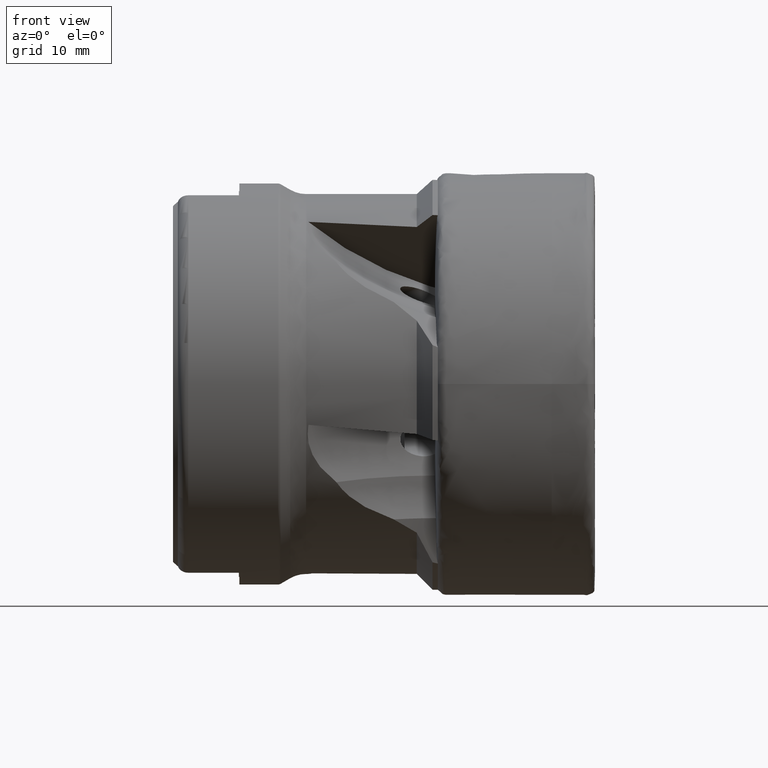
[diagram: clean part render]
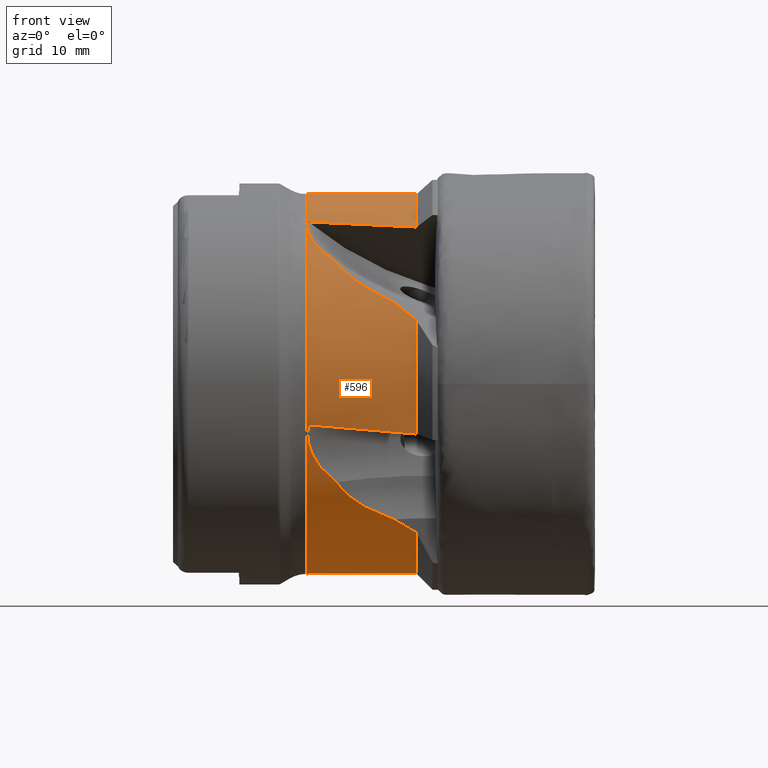
[diagram: same view with one face highlighted and labeled with its STEP entity id]
A machine part, front view. The second image highlights one B-rep face of the part: STEP entity #596.
In plain terms, the highlighted cylindrical surface (partial cylindrical patch) has radius 18 mm, axis along (1, -0, -0).
Its self-contained STEP definition (entity closure, byte-faithful):
#134 = VERTEX_POINT ( 'NONE', #5346 ) ;
#136 = VERTEX_POINT ( 'NONE', #5367 ) ;
#143 = VERTEX_POINT ( 'NONE', #5355 ) ;
#165 = VERTEX_POINT ( 'NONE', #5868 ) ;
#169 = VERTEX_POINT ( 'NONE', #5876 ) ;
#178 = VERTEX_POINT ( 'NONE', #5917 ) ;
#192 = VERTEX_POINT ( 'NONE', #5843 ) ;
#197 = VERTEX_POINT ( 'NONE', #5837 ) ;
#205 = VERTEX_POINT ( 'NONE', #5816 ) ;
#206 = VERTEX_POINT ( 'NONE', #5818 ) ;
#207 = VERTEX_POINT ( 'NONE', #5845 ) ;
#208 = VERTEX_POINT ( 'NONE', #5810 ) ;
#210 = VERTEX_POINT ( 'NONE', #5811 ) ;
#211 = VERTEX_POINT ( 'NONE', #5812 ) ;
#214 = VERTEX_POINT ( 'NONE', #5853 ) ;
#218 = VERTEX_POINT ( 'NONE', #5813 ) ;
#274 = ORIENTED_EDGE ( 'NONE', *, *, #5990, .F. ) ;
#275 = ORIENTED_EDGE ( 'NONE', *, *, #6005, .F. ) ;
#276 = ORIENTED_EDGE ( 'NONE', *, *, #6013, .T. ) ;
#277 = ORIENTED_EDGE ( 'NONE', *, *, #6015, .T. ) ;
#278 = ORIENTED_EDGE ( 'NONE', *, *, #6007, .T. ) ;
#279 = ORIENTED_EDGE ( 'NONE', *, *, #5762, .F. ) ;
#280 = ORIENTED_EDGE ( 'NONE', *, *, #6003, .F. ) ;
#281 = ORIENTED_EDGE ( 'NONE', *, *, #6039, .T. ) ;
#282 = ORIENTED_EDGE ( 'NONE', *, *, #6034, .T. ) ;
#283 = ORIENTED_EDGE ( 'NONE', *, *, #6052, .T. ) ;
#284 = ORIENTED_EDGE ( 'NONE', *, *, #6019, .F. ) ;
#285 = ORIENTED_EDGE ( 'NONE', *, *, #6001, .F. ) ;
#375 = ORIENTED_EDGE ( 'NONE', *, *, #5587, .T. ) ;
#376 = ORIENTED_EDGE ( 'NONE', *, *, #6006, .T. ) ;
#596 = ADVANCED_FACE ( 'NONE', ( #1415 ), #1418, .T. ) ;
#734 = AXIS2_PLACEMENT_3D ( 'NONE', #6546, #6564, #6541 ) ;
#950 = AXIS2_PLACEMENT_3D ( 'NONE', #4468, #4469, #4470 ) ;
#952 = AXIS2_PLACEMENT_3D ( 'NONE', #4475, #4476, #4477 ) ;
#953 = AXIS2_PLACEMENT_3D ( 'NONE', #4502, #4503, #4504 ) ;
#989 = AXIS2_PLACEMENT_3D ( 'NONE', #5124, #5125, #5126 ) ;
#1415 = FACE_OUTER_BOUND ( 'NONE', #6071, .T. ) ;
#1418 = CYLINDRICAL_SURFACE ( 'NONE', #734, 18.00000000000000400 ) ;
#1837 = LINE ( 'NONE', #3836, #1847 ) ;
#1847 = VECTOR ( 'NONE', #3839, 1000.000000000000000 ) ;
#1885 = LINE ( 'NONE', #4116, #1890 ) ;
#1890 = VECTOR ( 'NONE', #4118, 1000.000000000000000 ) ;
#2019 = CIRCLE ( 'NONE', #952, 18.00000000000000400 ) ;
#2021 = CIRCLE ( 'NONE', #950, 18.00000000000000400 ) ;
#2024 = CIRCLE ( 'NONE', #953, 18.00000000000000400 ) ;
#2090 = CIRCLE ( 'NONE', #989, 18.00000000000000700 ) ;
#3836 = CARTESIAN_POINT ( 'NONE',  ( 0.0000000000000000000, 2.204364238465235800E-015, 18.00000000000000400 ) ) ;
#3839 = DIRECTION ( 'NONE',  ( 1.000000000000000000, -0.0000000000000000000, -0.0000000000000000000 ) ) ;
#3968 =( BOUNDED_CURVE ( )  B_SPLINE_CURVE ( 3, ( #4230, #4229, #4236, #4237 ),
 .UNSPECIFIED., .F., .F. ) 
 B_SPLINE_CURVE_WITH_KNOTS ( ( 4, 4 ),
 ( 1.600942919274262100, 1.650925920689469800 ),
 .UNSPECIFIED. ) 
 CURVE ( )  GEOMETRIC_REPRESENTATION_ITEM ( )  RATIONAL_B_SPLINE_CURVE ( ( 1.000000000000000000, 0.9997918191331811600, 0.9997918191331811600, 1.000000000000000000 ) ) 
 REPRESENTATION_ITEM ( '' )  );
#3990 =( BOUNDED_CURVE ( )  B_SPLINE_CURVE ( 3, ( #4428, #4429, #4433, #4434 ),
 .UNSPECIFIED., .F., .F. ) 
 B_SPLINE_CURVE_WITH_KNOTS ( ( 4, 4 ),
 ( 1.600942919274262100, 1.650925920689467100 ),
 .UNSPECIFIED. ) 
 CURVE ( )  GEOMETRIC_REPRESENTATION_ITEM ( )  RATIONAL_B_SPLINE_CURVE ( ( 1.000000000000000000, 0.9997918191331811600, 0.9997918191331811600, 1.000000000000000000 ) ) 
 REPRESENTATION_ITEM ( '' )  );
#3995 = B_SPLINE_CURVE_WITH_KNOTS ( 'NONE', 3,
 ( #4501, #4500, #4506, #4507 ),
 .UNSPECIFIED., .F., .F.,
 ( 4, 4 ),
 ( 0.008043967339385059100, 0.009488676357650473200 ),
 .UNSPECIFIED. ) ;
#3996 = B_SPLINE_CURVE_WITH_KNOTS ( 'NONE', 3,
 ( #4464, #4505, #4509, #4510, #4511, #4512, #4513, #4514, #4515, #4516, #4517, #4518, #4519, #4520, #4521, #4522 ),
 .UNSPECIFIED., .F., .F.,
 ( 4, 2, 2, 2, 2, 2, 2, 4 ),
 ( 0.001676247638824960900, 0.002517159021820257600, 0.003358070404815552500, 0.005039893170806131500, 0.005880804553801423000, 0.006721715936796712800, 0.007562627319792004200, 0.008403538702787294000 ),
 .UNSPECIFIED. ) ;
#4000 = B_SPLINE_CURVE_WITH_KNOTS ( 'NONE', 3,
 ( #4564, #4563, #4570, #4571 ),
 .UNSPECIFIED., .F., .F.,
 ( 4, 4 ),
 ( 4.210056296469060200E-017, 0.002885907314653152100 ),
 .UNSPECIFIED. ) ;
#4001 = B_SPLINE_CURVE_WITH_KNOTS ( 'NONE', 3,
 ( #4572, #4573, #4578, #4579, #4580, #4581, #4582, #4583, #4584, #4585, #4586, #4587 ),
 .UNSPECIFIED., .F., .F.,
 ( 4, 2, 2, 2, 2, 4 ),
 ( 0.002339962240303283900, 0.004112411671007567100, 0.005884861101711848900, 0.007657310532416132500, 0.008543535247768272600, 0.009429759963120414400 ),
 .UNSPECIFIED. ) ;
#4003 =( BOUNDED_CURVE ( )  B_SPLINE_CURVE ( 3, ( #4602, #4603, #4608, #4609 ),
 .UNSPECIFIED., .F., .F. ) 
 B_SPLINE_CURVE_WITH_KNOTS ( ( 4, 4 ),
 ( 1.600942919274262100, 1.650925920689467100 ),
 .UNSPECIFIED. ) 
 CURVE ( )  GEOMETRIC_REPRESENTATION_ITEM ( )  RATIONAL_B_SPLINE_CURVE ( ( 1.000000000000000000, 0.9997918191331811600, 0.9997918191331811600, 1.000000000000000000 ) ) 
 REPRESENTATION_ITEM ( '' )  );
#4012 = B_SPLINE_CURVE_WITH_KNOTS ( 'NONE', 3,
 ( #4676, #4684, #4696, #4697, #4698, #4699, #4700, #4701, #4702, #4703, #4704, #4705 ),
 .UNSPECIFIED., .F., .F.,
 ( 4, 2, 2, 2, 2, 4 ),
 ( 0.002339962240303959100, 0.004111825574473437100, 0.005883688908642914100, 0.007655552242812392100, 0.008541483909897127100, 0.009427415576981861300 ),
 .UNSPECIFIED. ) ;
#4016 = B_SPLINE_CURVE_WITH_KNOTS ( 'NONE', 3,
 ( #4734, #4733, #4739, #4740 ),
 .UNSPECIFIED., .F., .F.,
 ( 4, 4 ),
 ( 6.014889436379361800E-017, 0.002885907314653583600 ),
 .UNSPECIFIED. ) ;
#4024 = B_SPLINE_CURVE_WITH_KNOTS ( 'NONE', 3,
 ( #4801, #4809, #4830, #4831, #4832, #4833, #4834, #4835, #4836, #4837, #4838, #4839, #4840, #4841 ),
 .UNSPECIFIED., .F., .F.,
 ( 4, 2, 2, 2, 2, 2, 4 ),
 ( 0.008498968940308843800, 0.01017260691994831300, 0.01184624489958778200, 0.01268306388940751800, 0.01351988287922725400, 0.01435670186904698800, 0.01519352085886672500 ),
 .UNSPECIFIED. ) ;
#4116 = CARTESIAN_POINT ( 'NONE',  ( 0.0000000000000000000, 0.0000000000000000000, -18.00000000000000400 ) ) ;
#4118 = DIRECTION ( 'NONE',  ( 1.000000000000000000, -0.0000000000000000000, -0.0000000000000000000 ) ) ;
#4229 = CARTESIAN_POINT ( 'NONE',  ( -19.42664910740196400, -17.44329793379818800, -4.452113513408334300 ) ) ;
#4230 = CARTESIAN_POINT ( 'NONE',  ( -15.99999999999998200, -17.36429240675654700, -4.741450117069346600 ) ) ;
#4236 = CARTESIAN_POINT ( 'NONE',  ( -22.84964599021049700, -17.51504858643505000, -4.160893000107154000 ) ) ;
#4237 = CARTESIAN_POINT ( 'NONE',  ( -26.26685284105098000, -17.57949955332797400, -3.867970456782499100 ) ) ;
#4428 = CARTESIAN_POINT ( 'NONE',  ( -15.99999999999998200, -0.5425564751527683900, -17.99182126609949300 ) ) ;
#4429 = CARTESIAN_POINT ( 'NONE',  ( -19.42664910740178300, -0.8423494259316528500, -17.98278079130572500 ) ) ;
#4433 = CARTESIAN_POINT ( 'NONE',  ( -22.84964599021013500, -1.141822848461959500, -17.96625164374170700 ) ) ;
#4434 = CARTESIAN_POINT ( 'NONE',  ( -26.26685284105032600, -1.440789708833602400, -17.94224414656424600 ) ) ;
#4464 = CARTESIAN_POINT ( 'NONE',  ( -23.60894969125574500, -15.40981562249034400, -9.302557846143821900 ) ) ;
#4468 = CARTESIAN_POINT ( 'NONE',  ( -15.99999999999998200, 0.0000000000000000000, 0.0000000000000000000 ) ) ;
#4469 = DIRECTION ( 'NONE',  ( 1.000000000000000000, -0.0000000000000000000, -0.0000000000000000000 ) ) ;
#4470 = DIRECTION ( 'NONE',  ( 0.0000000000000000000, 0.0000000000000000000, -1.000000000000000000 ) ) ;
#4475 = CARTESIAN_POINT ( 'NONE',  ( -15.99999999999998200, 0.0000000000000000000, 0.0000000000000000000 ) ) ;
#4476 = DIRECTION ( 'NONE',  ( 1.000000000000000000, -0.0000000000000000000, -0.0000000000000000000 ) ) ;
#4477 = DIRECTION ( 'NONE',  ( 0.0000000000000000000, 0.0000000000000000000, -1.000000000000000000 ) ) ;
#4500 = CARTESIAN_POINT ( 'NONE',  ( -26.36091894112928800, -0.4823173134096510600, -18.00000000000000400 ) ) ;
#4501 = CARTESIAN_POINT ( 'NONE',  ( -26.30237559643599700, -1.399686788546110700E-015, -18.00000000000000400 ) ) ;
#4502 = CARTESIAN_POINT ( 'NONE',  ( -15.99999999999998200, 0.0000000000000000000, 0.0000000000000000000 ) ) ;
#4503 = DIRECTION ( 'NONE',  ( 1.000000000000000000, -0.0000000000000000000, -0.0000000000000000000 ) ) ;
#4504 = DIRECTION ( 'NONE',  ( 0.0000000000000000000, 0.0000000000000000000, -1.000000000000000000 ) ) ;
#4505 = CARTESIAN_POINT ( 'NONE',  ( -23.82195952850091600, -15.50398142163749800, -9.146570898596561200 ) ) ;
#4506 = CARTESIAN_POINT ( 'NONE',  ( -26.34922387146879800, -0.9625793238788392700, -17.98064517353011000 ) ) ;
#4507 = CARTESIAN_POINT ( 'NONE',  ( -26.26685284105032600, -1.440789708833602400, -17.94224414656424600 ) ) ;
#4509 = CARTESIAN_POINT ( 'NONE',  ( -24.02847670828777300, -15.59975961131219600, -8.982597375298171400 ) ) ;
#4510 = CARTESIAN_POINT ( 'NONE',  ( -24.42642975061316700, -15.79442802139335500, -8.635716473719201100 ) ) ;
#4511 = CARTESIAN_POINT ( 'NONE',  ( -24.61874651658116200, -15.89381046009978200, -8.451852855052074200 ) ) ;
#4512 = CARTESIAN_POINT ( 'NONE',  ( -25.16118118892155300, -16.19232238974957000, -7.873805060231298100 ) ) ;
#4513 = CARTESIAN_POINT ( 'NONE',  ( -25.47712106966659800, -16.39136330381817100, -7.455054677033262000 ) ) ;
#4514 = CARTESIAN_POINT ( 'NONE',  ( -25.85908263114310700, -16.68530059770204900, -6.757544062982728600 ) ) ;
#4515 = CARTESIAN_POINT ( 'NONE',  ( -25.97038088615408200, -16.78235080934159400, -6.513344963961257500 ) ) ;
#4516 = CARTESIAN_POINT ( 'NONE',  ( -26.15034459715524700, -16.96774360185637300, -6.013870498192456900 ) ) ;
#4517 = CARTESIAN_POINT ( 'NONE',  ( -26.22008291239092200, -17.05684794251136400, -5.756860710532786000 ) ) ;
#4518 = CARTESIAN_POINT ( 'NONE',  ( -26.31474180860365300, -17.22672602568902200, -5.226606682186728700 ) ) ;
#4519 = CARTESIAN_POINT ( 'NONE',  ( -26.33905582822875500, -17.30748924587783200, -4.952745335896719500 ) ) ;
#4520 = CARTESIAN_POINT ( 'NONE',  ( -26.33861213922689600, -17.45357439795450500, -4.410398065196634600 ) ) ;
#4521 = CARTESIAN_POINT ( 'NONE',  ( -26.31453320748479600, -17.51982482162927800, -4.139185537394697100 ) ) ;
#4522 = CARTESIAN_POINT ( 'NONE',  ( -26.26685284105098000, -17.57949955332797400, -3.867970456782499100 ) ) ;
#4563 = CARTESIAN_POINT ( 'NONE',  ( -16.79625608365794800, -11.63182649021520700, -13.74790413223397500 ) ) ;
#4564 = CARTESIAN_POINT ( 'NONE',  ( -16.00000000000019500, -11.20001698358492000, -14.09111846403265000 ) ) ;
#4570 = CARTESIAN_POINT ( 'NONE',  ( -17.52238898240534200, -12.11023745004506200, -13.33640961978853700 ) ) ;
#4571 = CARTESIAN_POINT ( 'NONE',  ( -18.17194931938242800, -12.62315075929801000, -12.83183793959499400 ) ) ;
#4572 = CARTESIAN_POINT ( 'NONE',  ( -18.17194931938242800, -12.62315075929801000, -12.83183793959499400 ) ) ;
#4573 = CARTESIAN_POINT ( 'NONE',  ( -18.70525326304713700, -12.80632406175178800, -12.65164362738229200 ) ) ;
#4578 = CARTESIAN_POINT ( 'NONE',  ( -19.22639589112455400, -13.00112485977934000, -12.45246709949495300 ) ) ;
#4579 = CARTESIAN_POINT ( 'NONE',  ( -20.23887849094744600, -13.41588901779624300, -12.00446193487032600 ) ) ;
#4580 = CARTESIAN_POINT ( 'NONE',  ( -20.73033529528551000, -13.63579424027118100, -11.75586604467643400 ) ) ;
#4581 = CARTESIAN_POINT ( 'NONE',  ( -21.67385269645917500, -14.10462525784909200, -11.18904899261034700 ) ) ;
#4582 = CARTESIAN_POINT ( 'NONE',  ( -22.12772783852517500, -14.35507336868130700, -10.86857254152635300 ) ) ;
#4583 = CARTESIAN_POINT ( 'NONE',  ( -22.73834923163991200, -14.74087567395975500, -10.33223521279508400 ) ) ;
#4584 = CARTESIAN_POINT ( 'NONE',  ( -22.93118620233366300, -14.87165064630832100, -10.14356903441184200 ) ) ;
#4585 = CARTESIAN_POINT ( 'NONE',  ( -23.29128245992743700, -15.13767923961062300, -9.742107212527638900 ) ) ;
#4586 = CARTESIAN_POINT ( 'NONE',  ( -23.45942127125208300, -15.27374422507361200, -9.527961996310638800 ) ) ;
#4587 = CARTESIAN_POINT ( 'NONE',  ( -23.60894969125574500, -15.40981562249034400, -9.302557846143821900 ) ) ;
#4602 = CARTESIAN_POINT ( 'NONE',  ( -15.99999999999998200, -10.13638979328873700, 14.87459585866157000 ) ) ;
#4603 = CARTESIAN_POINT ( 'NONE',  ( -19.42664910740179400, -9.888538343557307500, 15.04349583612526300 ) ) ;
#4608 = CARTESIAN_POINT ( 'NONE',  ( -22.84964599021014900, -9.636543666195567700, 15.20614953606031600 ) ) ;
#4609 = CARTESIAN_POINT ( 'NONE',  ( -26.26685284105046500, -9.380563142614622800, 15.36245537430199600 ) ) ;
#4676 = CARTESIAN_POINT ( 'NONE',  ( -18.17194931938308500, -16.24243702710636900, 7.757785729219961900 ) ) ;
#4684 = CARTESIAN_POINT ( 'NONE',  ( -18.70507691522761800, -16.13173197070971200, 7.989568349914141400 ) ) ;
#4696 = CARTESIAN_POINT ( 'NONE',  ( -19.22605115239269200, -16.00687363508243900, 8.238513725541702500 ) ) ;
#4697 = CARTESIAN_POINT ( 'NONE',  ( -20.23821882578883800, -15.71843176847191300, 8.776332646118721200 ) ) ;
#4698 = CARTESIAN_POINT ( 'NONE',  ( -20.72952885387343300, -15.55504896289792100, 9.065075716252584600 ) ) ;
#4699 = CARTESIAN_POINT ( 'NONE',  ( -21.67278712584013400, -15.17195199992054300, 9.692627017050174500 ) ) ;
#4700 = CARTESIAN_POINT ( 'NONE',  ( -22.12647537022061800, -14.95076508702471700, 10.03343008670631800 ) ) ;
#4701 = CARTESIAN_POINT ( 'NONE',  ( -22.73883613935073500, -14.56818050047660600, 10.57435061380075300 ) ) ;
#4702 = CARTESIAN_POINT ( 'NONE',  ( -22.93249267738942300, -14.43178525899569600, 10.76021878618938600 ) ) ;
#4703 = CARTESIAN_POINT ( 'NONE',  ( -23.29454163830993400, -14.13685621510606400, 11.14486565382667000 ) ) ;
#4704 = CARTESIAN_POINT ( 'NONE',  ( -23.46113337960746000, -13.97957673839803400, 11.34192127763927800 ) ) ;
#4705 = CARTESIAN_POINT ( 'NONE',  ( -23.60894969125566700, -13.81268647685533300, 11.54165032792516000 ) ) ;
#4733 = CARTESIAN_POINT ( 'NONE',  ( -16.79625608365804400, -16.78585101597090200, 6.522228238661768700 ) ) ;
#4734 = CARTESIAN_POINT ( 'NONE',  ( -16.00000000000029500, -16.96978311794775300, 6.002204672435314400 ) ) ;
#4739 = CARTESIAN_POINT ( 'NONE',  ( -17.52238898240575100, -16.55253068396044100, 7.108544196937262200 ) ) ;
#4740 = CARTESIAN_POINT ( 'NONE',  ( -18.17194931938308500, -16.24243702710636900, 7.757785729219961900 ) ) ;
#4801 = CARTESIAN_POINT ( 'NONE',  ( -23.60894969125566700, -13.81268647685533300, 11.54165032792516000 ) ) ;
#4809 = CARTESIAN_POINT ( 'NONE',  ( -24.03662153221733500, -13.57811795816082800, 11.82237460166527000 ) ) ;
#4830 = CARTESIAN_POINT ( 'NONE',  ( -24.44176142058255900, -13.31258615342816600, 12.12269679194631800 ) ) ;
#4831 = CARTESIAN_POINT ( 'NONE',  ( -25.15834489841321900, -12.71881899431175000, 12.74426816226994700 ) ) ;
#4832 = CARTESIAN_POINT ( 'NONE',  ( -25.47338750579028500, -12.38980846057541300, 13.06703246189553800 ) ) ;
#4833 = CARTESIAN_POINT ( 'NONE',  ( -25.85639206574825600, -11.82609832741477600, 13.57229056249577300 ) ) ;
#4834 = CARTESIAN_POINT ( 'NONE',  ( -25.96823353062060800, -11.62650001091504300, 13.74393270394827700 ) ) ;
#4835 = CARTESIAN_POINT ( 'NONE',  ( -26.14905163308759800, -11.21403186813912700, 14.08249544416139700 ) ) ;
#4836 = CARTESIAN_POINT ( 'NONE',  ( -26.21919622453665600, -10.99963221335723400, 14.25082494861953600 ) ) ;
#4837 = CARTESIAN_POINT ( 'NONE',  ( -26.31448705672444500, -10.55244779500422300, 14.58505283086192300 ) ) ;
#4838 = CARTESIAN_POINT ( 'NONE',  ( -26.33894355013834200, -10.31967585316279200, 14.75070854387955800 ) ) ;
#4839 = CARTESIAN_POINT ( 'NONE',  ( -26.33872676836579900, -9.853759219108789900, 15.06593978192733900 ) ) ;
#4840 = CARTESIAN_POINT ( 'NONE',  ( -26.31468785537221700, -9.618342574462134900, 15.21726341636851200 ) ) ;
#4841 = CARTESIAN_POINT ( 'NONE',  ( -26.26685284105046500, -9.380563142614622800, 15.36245537430199600 ) ) ;
#5124 = CARTESIAN_POINT ( 'NONE',  ( -26.48012701892219000, 0.0000000000000000000, 0.0000000000000000000 ) ) ;
#5125 = DIRECTION ( 'NONE',  ( 1.000000000000000000, -0.0000000000000000000, -0.0000000000000000000 ) ) ;
#5126 = DIRECTION ( 'NONE',  ( 0.0000000000000000000, 0.0000000000000000000, -1.000000000000000000 ) ) ;
#5346 = CARTESIAN_POINT ( 'NONE',  ( -26.48012701892219000, 2.204364238465236200E-015, 18.00000000000000700 ) ) ;
#5355 = CARTESIAN_POINT ( 'NONE',  ( -15.99999999999998200, 2.204364238465235800E-015, 18.00000000000000400 ) ) ;
#5367 = CARTESIAN_POINT ( 'NONE',  ( -26.48012701892219000, 0.0000000000000000000, -18.00000000000000700 ) ) ;
#5546 = EDGE_CURVE ( 'NONE', #134, #143, #1837, .T. ) ;
#5587 = EDGE_CURVE ( 'NONE', #136, #169, #1885, .T. ) ;
#5704 = ORIENTED_EDGE ( 'NONE', *, *, #5546, .F. ) ;
#5733 = ORIENTED_EDGE ( 'NONE', *, *, #6171, .T. ) ;
#5762 = EDGE_CURVE ( 'NONE', #165, #178, #3968, .T. ) ;
#5810 = CARTESIAN_POINT ( 'NONE',  ( -26.26685284105032600, -1.440789708833602400, -17.94224414656424600 ) ) ;
#5811 = CARTESIAN_POINT ( 'NONE',  ( -18.17194931938242800, -12.62315075929801000, -12.83183793959499400 ) ) ;
#5812 = CARTESIAN_POINT ( 'NONE',  ( -23.60894969125566700, -13.81268647685533300, 11.54165032792516000 ) ) ;
#5813 = CARTESIAN_POINT ( 'NONE',  ( -16.00000000000019500, -11.20001698358492000, -14.09111846403265000 ) ) ;
#5816 = CARTESIAN_POINT ( 'NONE',  ( -18.17194931938308500, -16.24243702710636900, 7.757785729219961900 ) ) ;
#5818 = CARTESIAN_POINT ( 'NONE',  ( -15.99999999999998200, -0.5425564751527683900, -17.99182126609949300 ) ) ;
#5837 = CARTESIAN_POINT ( 'NONE',  ( -26.26685284105046500, -9.380563142614622800, 15.36245537430199600 ) ) ;
#5843 = CARTESIAN_POINT ( 'NONE',  ( -15.99999999999998200, -10.13638979328873700, 14.87459585866157000 ) ) ;
#5845 = CARTESIAN_POINT ( 'NONE',  ( -23.60894969125574500, -15.40981562249034400, -9.302557846143821900 ) ) ;
#5853 = CARTESIAN_POINT ( 'NONE',  ( -16.00000000000029500, -16.96978311794775300, 6.002204672435314400 ) ) ;
#5868 = CARTESIAN_POINT ( 'NONE',  ( -15.99999999999998200, -17.36429240675654700, -4.741450117069346600 ) ) ;
#5876 = CARTESIAN_POINT ( 'NONE',  ( -26.30237559643599700, -1.399686788546110700E-015, -18.00000000000000400 ) ) ;
#5917 = CARTESIAN_POINT ( 'NONE',  ( -26.26685284105098000, -17.57949955332797400, -3.867970456782499100 ) ) ;
#5990 = EDGE_CURVE ( 'NONE', #206, #208, #3990, .T. ) ;
#6001 = EDGE_CURVE ( 'NONE', #143, #192, #2021, .T. ) ;
#6003 = EDGE_CURVE ( 'NONE', #214, #165, #2019, .T. ) ;
#6005 = EDGE_CURVE ( 'NONE', #218, #206, #2024, .T. ) ;
#6006 = EDGE_CURVE ( 'NONE', #169, #208, #3995, .T. ) ;
#6007 = EDGE_CURVE ( 'NONE', #207, #178, #3996, .T. ) ;
#6013 = EDGE_CURVE ( 'NONE', #218, #210, #4000, .T. ) ;
#6015 = EDGE_CURVE ( 'NONE', #210, #207, #4001, .T. ) ;
#6019 = EDGE_CURVE ( 'NONE', #192, #197, #4003, .T. ) ;
#6034 = EDGE_CURVE ( 'NONE', #205, #211, #4012, .T. ) ;
#6039 = EDGE_CURVE ( 'NONE', #214, #205, #4016, .T. ) ;
#6052 = EDGE_CURVE ( 'NONE', #211, #197, #4024, .T. ) ;
#6071 = EDGE_LOOP ( 'NONE', ( #5704, #5733, #375, #376, #274, #275, #276, #277, #278, #279, #280, #281, #282, #283, #284, #285 ) ) ;
#6171 = EDGE_CURVE ( 'NONE', #134, #136, #2090, .T. ) ;
#6541 = DIRECTION ( 'NONE',  ( 0.0000000000000000000, 0.0000000000000000000, -1.000000000000000000 ) ) ;
#6546 = CARTESIAN_POINT ( 'NONE',  ( 0.0000000000000000000, 0.0000000000000000000, 0.0000000000000000000 ) ) ;
#6564 = DIRECTION ( 'NONE',  ( 1.000000000000000000, -0.0000000000000000000, -0.0000000000000000000 ) ) ;